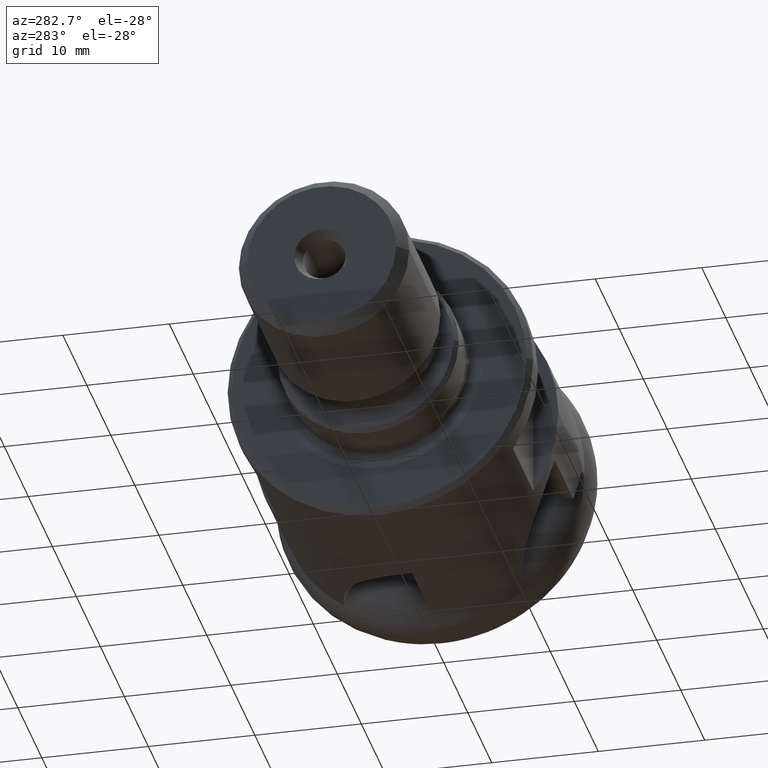
[diagram: clean part render]
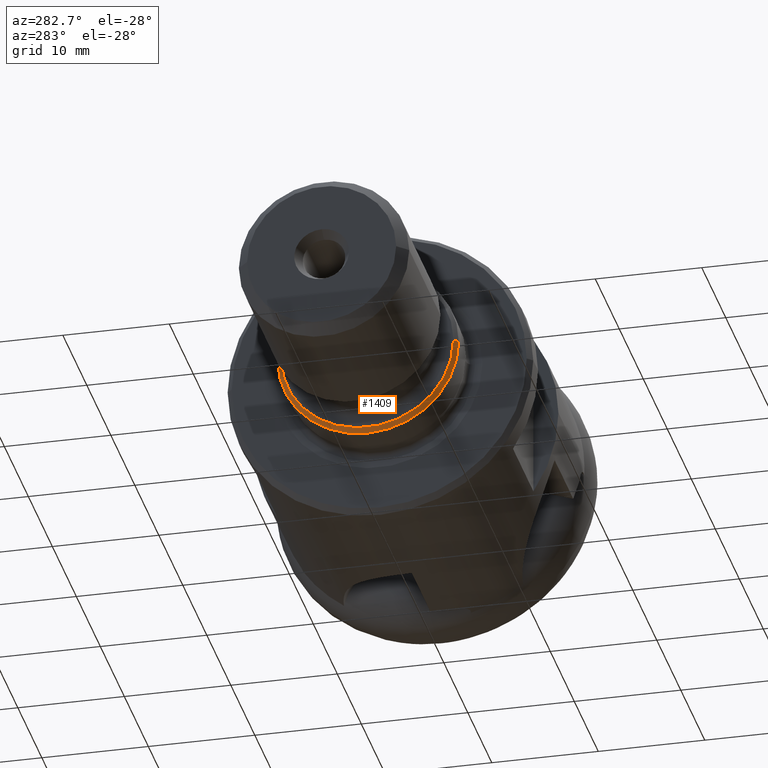
[diagram: same view with one face highlighted and labeled with its STEP entity id]
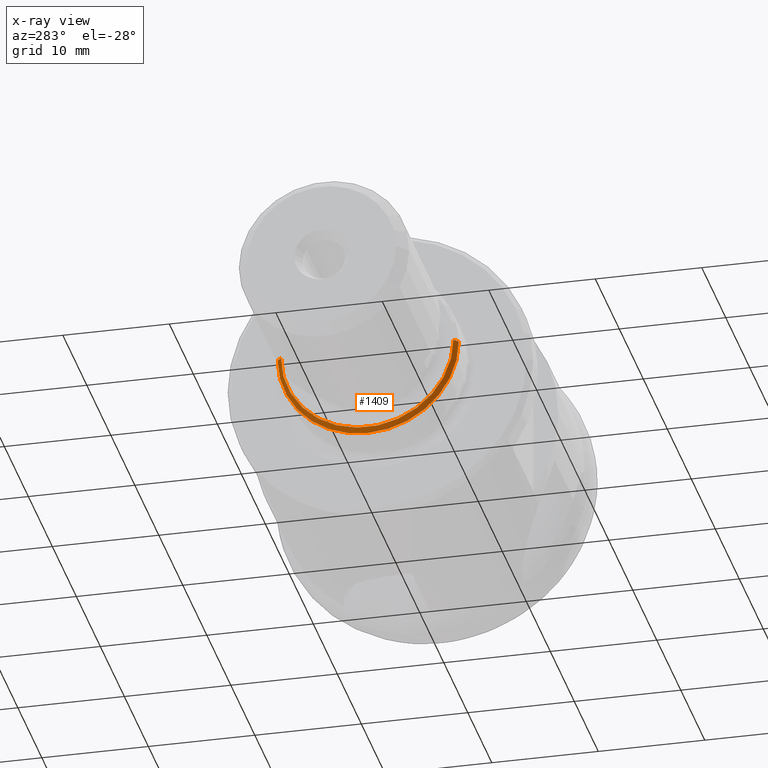
[diagram: x-ray of the same camera — body ghosted, the highlighted face saturated]
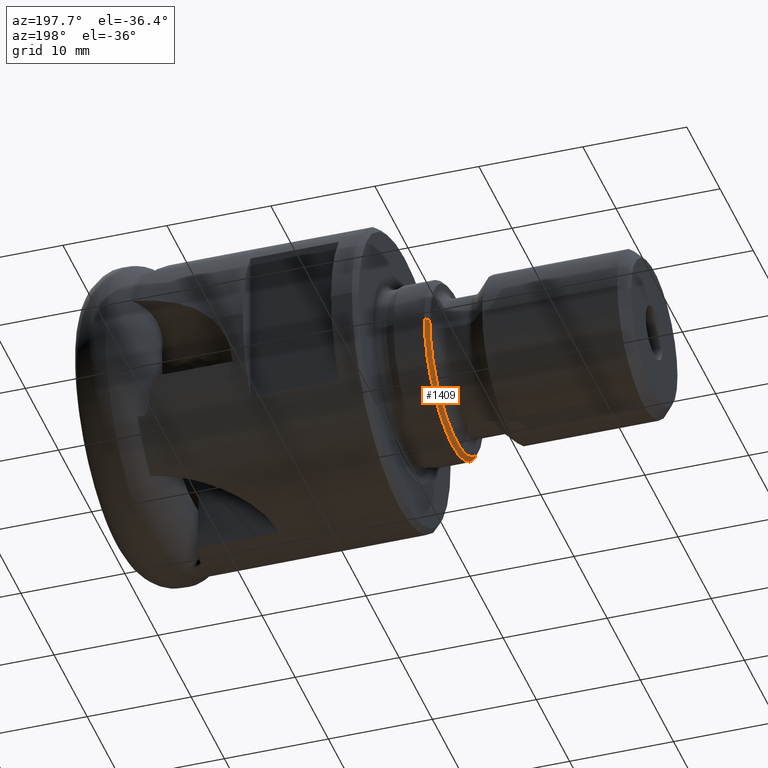
[diagram: same view with one face highlighted and labeled with its STEP entity id]
A machine part, auxiliary view. The second image highlights one B-rep face of the part: STEP entity #1409.
The next image is the same camera in x-ray: the body ghosted, the highlighted face saturated — about 2% of this face is hidden behind the body in this view.
A second angle (auxiliary view) of the same face is appended — the face is thin or edge-on in the first view.
In plain terms, the highlighted conical surface has half-angle 45 deg.
Its self-contained STEP definition (entity closure, byte-faithful):
#216 = VERTEX_POINT ( 'NONE', #7750 ) ;
#459 = VECTOR ( 'NONE', #5724, 999.9999999999998900 ) ;
#539 = CIRCLE ( 'NONE', #7213, 8.099999999999999600 ) ;
#1030 = DIRECTION ( 'NONE',  ( 0.7071067811865474600, 0.7071067811865475700, 0.0000000000000000000 ) ) ;
#1061 = CARTESIAN_POINT ( 'NONE',  ( -31.50800000000001000, -3.302439760359596800E-015, 0.0000000000000000000 ) ) ;
#1112 = ORIENTED_EDGE ( 'NONE', *, *, #7230, .F. ) ;
#1208 = EDGE_CURVE ( 'NONE', #4129, #3838, #1980, .T. ) ;
#1409 = ADVANCED_FACE ( 'NONE', ( #7317 ), #5890, .T. ) ;
#1611 = ORIENTED_EDGE ( 'NONE', *, *, #7844, .T. ) ;
#1648 = CARTESIAN_POINT ( 'NONE',  ( -31.40800000000000500, 8.599999999999996100, 0.0000000000000000000 ) ) ;
#1839 = DIRECTION ( 'NONE',  ( 0.0000000000000000000, 1.000000000000000000, 0.0000000000000000000 ) ) ;
#1980 = CIRCLE ( 'NONE', #2377, 8.499999999999996400 ) ;
#1990 = CARTESIAN_POINT ( 'NONE',  ( -31.50800000000001000, 0.0000000000000000000, -8.499999999999996400 ) ) ;
#2035 = DIRECTION ( 'NONE',  ( 0.0000000000000000000, 1.000000000000000000, 0.0000000000000000000 ) ) ;
#2377 = AXIS2_PLACEMENT_3D ( 'NONE', #1061, #3687, #4320 ) ;
#2496 = CARTESIAN_POINT ( 'NONE',  ( -31.90800000000000500, -3.344364855705027600E-015, 0.0000000000000000000 ) ) ;
#2745 = ORIENTED_EDGE ( 'NONE', *, *, #7772, .F. ) ;
#3245 = AXIS2_PLACEMENT_3D ( 'NONE', #5967, #3375, #7978 ) ;
#3375 = DIRECTION ( 'NONE',  ( 1.000000000000000000, 1.048127383635773700E-016, -0.0000000000000000000 ) ) ;
#3497 = VERTEX_POINT ( 'NONE', #7342 ) ;
#3542 = ORIENTED_EDGE ( 'NONE', *, *, #1208, .F. ) ;
#3687 = DIRECTION ( 'NONE',  ( 1.000000000000000000, 1.048127383635773700E-016, -0.0000000000000000000 ) ) ;
#3769 = VERTEX_POINT ( 'NONE', #7727 ) ;
#3838 = VERTEX_POINT ( 'NONE', #1990 ) ;
#4117 = EDGE_CURVE ( 'NONE', #216, #3769, #539, .T. ) ;
#4129 = VERTEX_POINT ( 'NONE', #6370 ) ;
#4320 = DIRECTION ( 'NONE',  ( 0.0000000000000000000, 1.000000000000000000, 0.0000000000000000000 ) ) ;
#4411 = CARTESIAN_POINT ( 'NONE',  ( -31.40800000000000500, -8.600000000000003200, 1.053196247266723700E-015 ) ) ;
#4479 = VECTOR ( 'NONE', #1030, 1000.000000000000000 ) ;
#4505 = CARTESIAN_POINT ( 'NONE',  ( -31.40800000000000500, -3.291958486523238600E-015, 0.0000000000000000000 ) ) ;
#5001 = DIRECTION ( 'NONE',  ( 1.000000000000000000, 1.048127383635773700E-016, -0.0000000000000000000 ) ) ;
#5017 = EDGE_LOOP ( 'NONE', ( #1112, #5302, #1611, #2745, #3542 ) ) ;
#5161 = LINE ( 'NONE', #4411, #459 ) ;
#5302 = ORIENTED_EDGE ( 'NONE', *, *, #4117, .T. ) ;
#5724 = DIRECTION ( 'NONE',  ( 0.7071067811865477900, -0.7071067811865473500, 8.659560562354932900E-017 ) ) ;
#5772 = CIRCLE ( 'NONE', #3245, 8.499999999999996400 ) ;
#5890 = CONICAL_SURFACE ( 'NONE', #7712, 8.599999999999999600, 0.7853981633974482800 ) ;
#5902 = DIRECTION ( 'NONE',  ( 1.000000000000000000, 1.048127383635773700E-016, -0.0000000000000000000 ) ) ;
#5967 = CARTESIAN_POINT ( 'NONE',  ( -31.50800000000001000, -3.302439760359596800E-015, 0.0000000000000000000 ) ) ;
#6370 = CARTESIAN_POINT ( 'NONE',  ( -31.50800000000001000, -8.500000000000001800, 1.040949779275249900E-015 ) ) ;
#7213 = AXIS2_PLACEMENT_3D ( 'NONE', #2496, #5001, #1839 ) ;
#7230 = EDGE_CURVE ( 'NONE', #216, #4129, #5161, .T. ) ;
#7317 = FACE_OUTER_BOUND ( 'NONE', #5017, .T. ) ;
#7342 = CARTESIAN_POINT ( 'NONE',  ( -31.50800000000001000, 8.499999999999991100, 0.0000000000000000000 ) ) ;
#7406 = LINE ( 'NONE', #1648, #4479 ) ;
#7712 = AXIS2_PLACEMENT_3D ( 'NONE', #4505, #5902, #2035 ) ;
#7727 = CARTESIAN_POINT ( 'NONE',  ( -31.90800000000000500, 8.099999999999996100, 0.0000000000000000000 ) ) ;
#7750 = CARTESIAN_POINT ( 'NONE',  ( -31.90800000000000500, -8.100000000000003200, 1.016456843292303000E-015 ) ) ;
#7772 = EDGE_CURVE ( 'NONE', #3838, #3497, #5772, .T. ) ;
#7844 = EDGE_CURVE ( 'NONE', #3769, #3497, #7406, .T. ) ;
#7978 = DIRECTION ( 'NONE',  ( 0.0000000000000000000, 1.000000000000000000, 0.0000000000000000000 ) ) ;